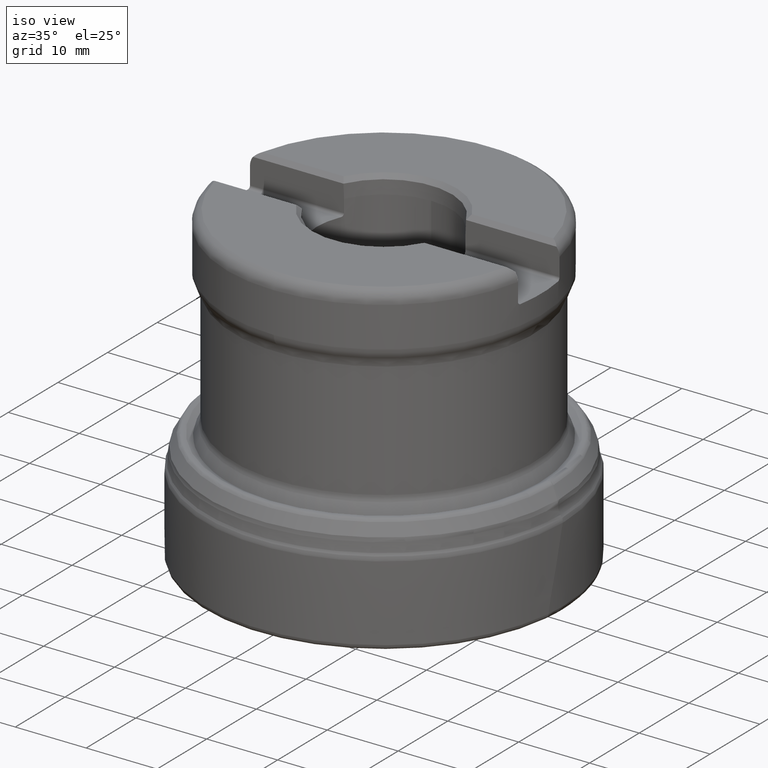
[diagram: clean part render]
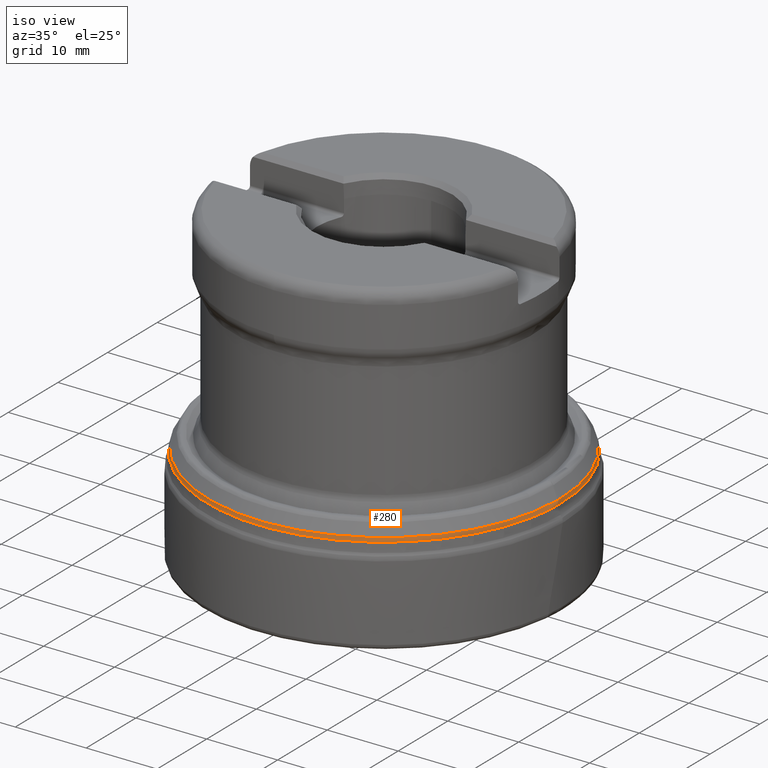
[diagram: same view with one face highlighted and labeled with its STEP entity id]
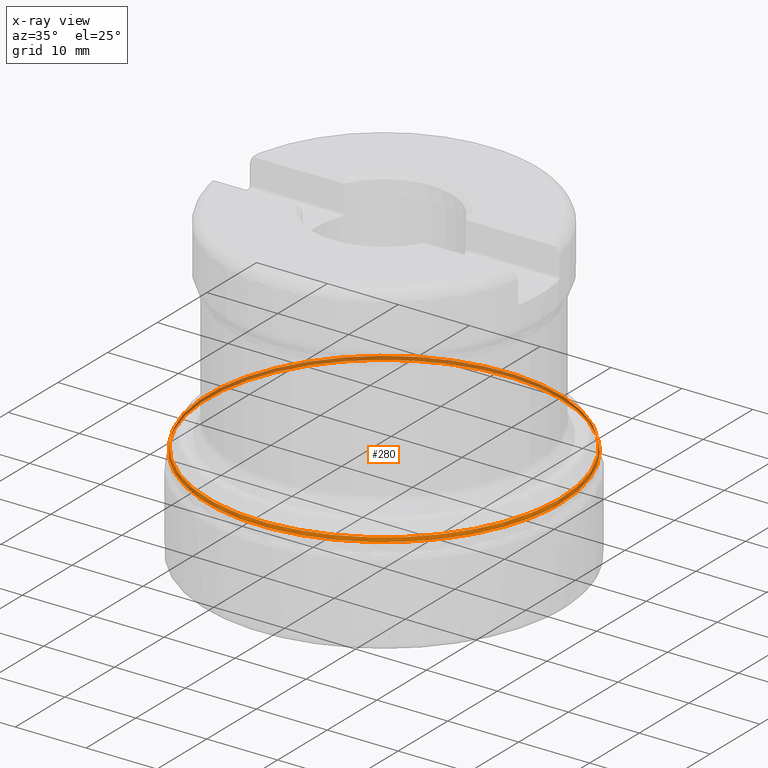
[diagram: x-ray of the same camera — body ghosted, the highlighted face saturated]
A machine part, iso view. The second image highlights one B-rep face of the part: STEP entity #280.
The next image is the same camera in x-ray: the body ghosted, the highlighted face saturated — about 38% of this face is hidden behind the body in this view.
In plain terms, the highlighted face is a SurfaceOfRevolution surface.
Its self-contained STEP definition (entity closure, byte-faithful):
#110=(
BOUNDED_CURVE()
B_SPLINE_CURVE(3,(#2331,#2332,#2333,#2334,#2335,#2336,#2337),
 .UNSPECIFIED.,.T.,.F.)
B_SPLINE_CURVE_WITH_KNOTS((1,3,3,3,1),(-0.5,0.,0.5,1.,1.5),
 .UNSPECIFIED.)
CURVE()
GEOMETRIC_REPRESENTATION_ITEM()
RATIONAL_B_SPLINE_CURVE((1.,0.333333333333333,0.333333333333333,1.,0.333333333333333,
0.333333333333333,1.))
REPRESENTATION_ITEM('')
);
#122=SURFACE_OF_REVOLUTION('',#1120,#143);
#143=AXIS1_PLACEMENT('',#2355,#1478);
#280=ADVANCED_FACE('',(#430,#431),#122,.F.);
#430=FACE_BOUND('',#550,.T.);
#431=FACE_BOUND('',#551,.T.);
#550=EDGE_LOOP('',(#778));
#551=EDGE_LOOP('',(#779));
#778=ORIENTED_EDGE('',*,*,#996,.T.);
#779=ORIENTED_EDGE('',*,*,#997,.F.);
#882=VERTEX_POINT('',#2338);
#883=VERTEX_POINT('',#2349);
#996=EDGE_CURVE('',#882,#882,#110,.T.);
#997=EDGE_CURVE('',#883,#883,#1056,.T.);
#1056=CIRCLE('',#1231,24.8331951703127);
#1120=B_SPLINE_CURVE_WITH_KNOTS('',3,(#2350,#2351,#2352,#2353,#2354),
 .UNSPECIFIED.,.F.,.F.,(4,1,4),(0.,0.5,1.),.UNSPECIFIED.);
#1231=AXIS2_PLACEMENT_3D('',#2348,#1476,#1477);
#1476=DIRECTION('',(0.,0.,1.));
#1477=DIRECTION('',(1.,0.,0.));
#1478=DIRECTION('',(0.,0.,1.));
#2331=CARTESIAN_POINT('',(24.92440053503,-0.512656451651238,13.6629718829539));
#2332=CARTESIAN_POINT('',(25.9497134383325,49.3361446184088,13.6629718829539));
#2333=CARTESIAN_POINT('',(-23.8990876317276,50.3614575217113,13.6629718829539));
#2334=CARTESIAN_POINT('',(-24.92440053503,0.512656451651241,13.6629718829539));
#2335=CARTESIAN_POINT('',(-25.9497134383325,-49.3361446184088,13.6629718829539));
#2336=CARTESIAN_POINT('',(23.8990876317276,-50.3614575217113,13.6629718829539));
#2337=CARTESIAN_POINT('',(24.92440053503,-0.512656451651238,13.6629718829539));
#2338=CARTESIAN_POINT('',(24.924358157488,-0.51265558001059,13.6629771490576));
#2348=CARTESIAN_POINT('',(0.,0.,14.2206175620748));
#2349=CARTESIAN_POINT('',(24.8331951703127,0.,14.2206175620748));
#2350=CARTESIAN_POINT('',(24.8282556818575,-0.495279883654956,14.2206175620748));
#2351=CARTESIAN_POINT('',(24.8732231437028,-0.50974570604787,14.1393977291596));
#2352=CARTESIAN_POINT('',(24.9350339736247,-0.525330927611344,13.9545117414543));
#2353=CARTESIAN_POINT('',(24.9358671973225,-0.520097479419892,13.757020260165));
#2354=CARTESIAN_POINT('',(24.9243926855514,-0.512661938880196,13.6629092488395));
#2355=CARTESIAN_POINT('',(0.,0.,0.));